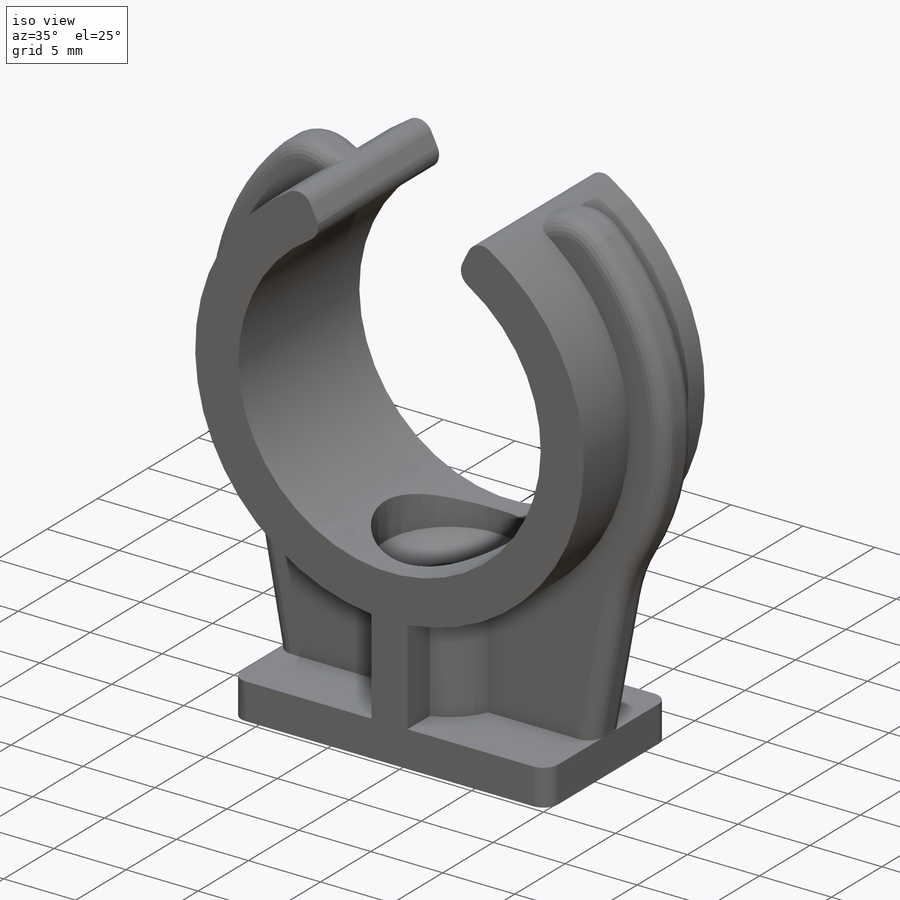
[diagram: iso view]
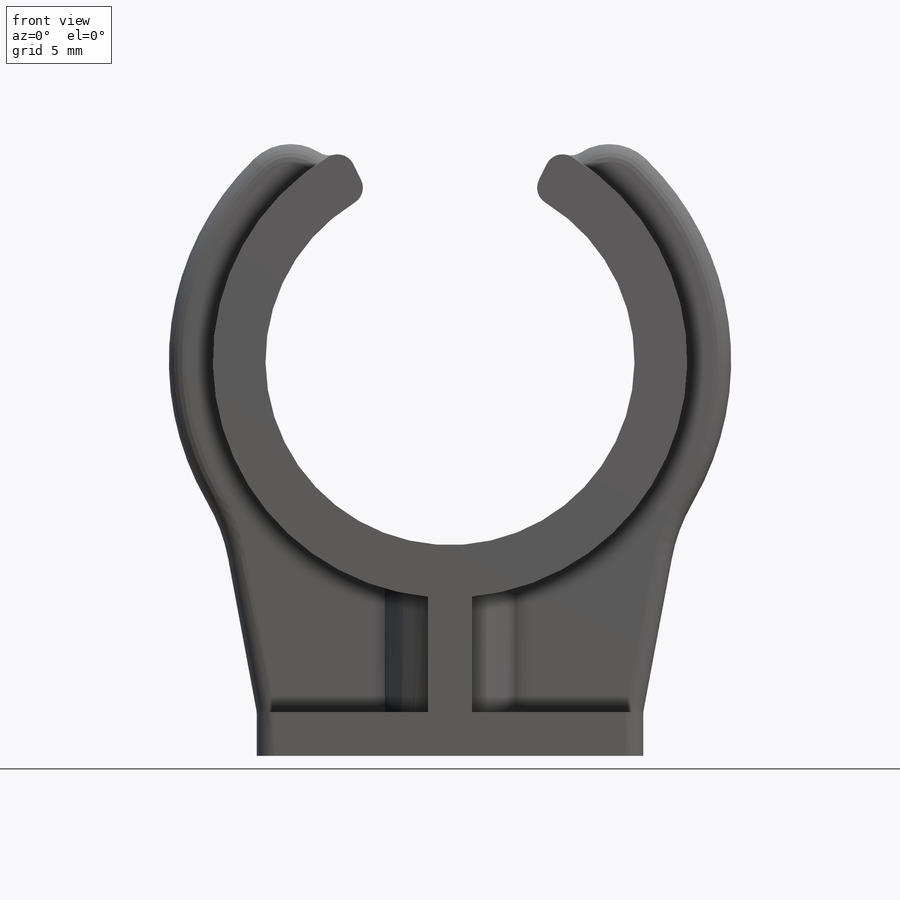
[diagram: front view]
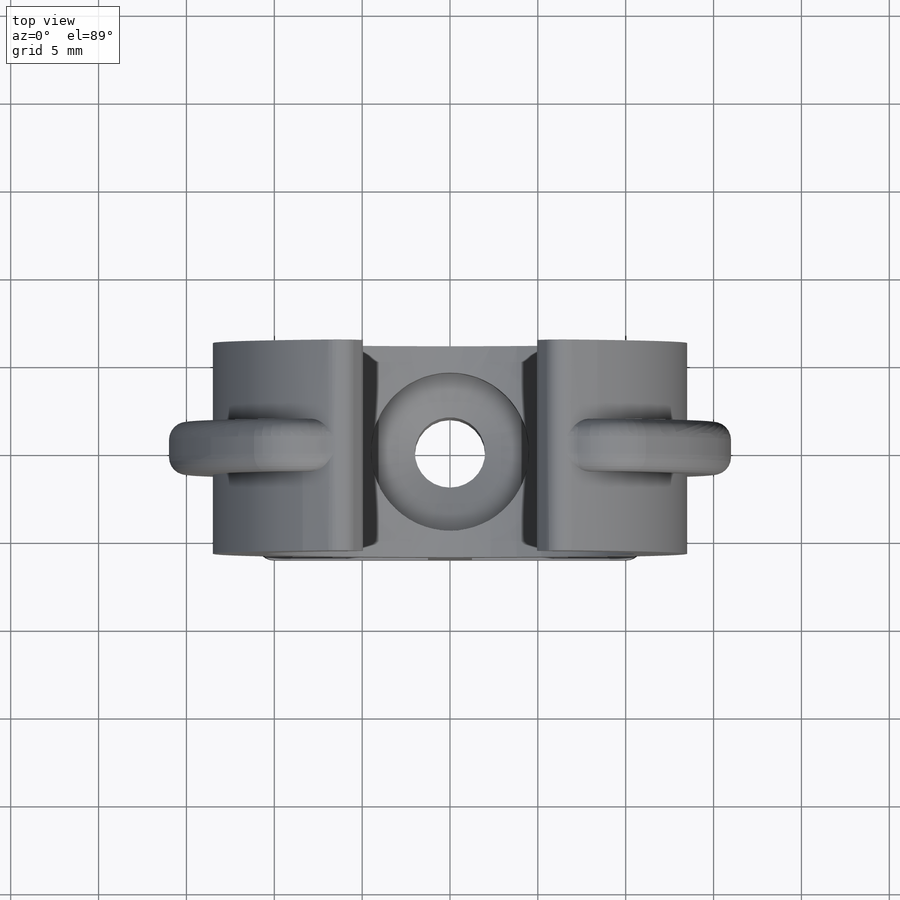
[diagram: top view]
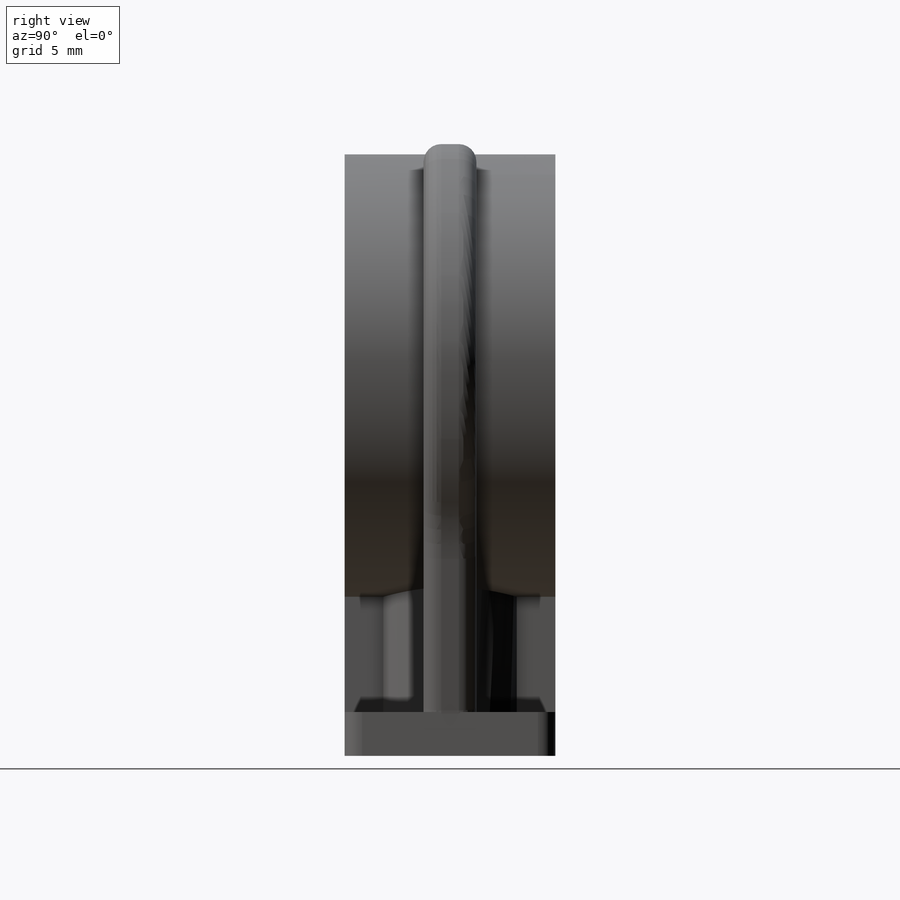
[diagram: right view]
SOLIDWORKS PART (.sldprt)
format: sldprt  version: not decoded by parser v0  size: 418,304 bytes
history: native  units: mm
features: sketch x6, fillet x4, plane x3, extrude x3, cut_extrude x2, material x1, cut_revolve x1 (+12 scaffold rows collapsed)
feature tree (32):
  scaffold x12  (default folders/planes/origin — collapsed)
  material  "Matériau <non spécifié>"
  plane  "Plan de face"
  plane  "Plan de dessus"
  plane  "Plan de droite"
  sketch  "Esquisse1"  dims[c1.D1=~15.293356mm c1.D2=27.0mm c1.D7=1.0mm c1.D8=1.0mm c2.D1=2.5mm c2.D2=20.0mm c2.D3=22.0mm c2.D4=11.0mm c2.D5=2.5mm c2.D6=1.25mm c2.D7=12.0mm c2.D8=6.0mm]
  extrude  "Boss.-Extru.1"  Depth=6mm
  sketch  "Esquisse2"  dims[D1=3.0mm D2=10.0mm]
  extrude  "Boss.-Extru.2"  Depth=1.5mm
  sketch  "Esquisse3"  dims[D1=~3.057818mm]
  extrude  "Boss.-Extru.4"  [1 undecoded]
  sketch  "Esquisse4"  dims[D1=~2.029096mm]
  cut_extrude  "Enlèv. mat.-Extru.1"  [1 undecoded]
  sketch  "Esquisse5"  dims[D1=~3.721421mm]
  cut_extrude  "Enlèv. mat.-Extru.2"  Depth=12mm
  fillet  "Congé5"  Radius=1mm
  fillet  "Congé6"  Radius=1mm
  fillet  "Congé7"  Radius=1mm
  fillet  "Congé8"  Radius=1mm
  sketch  "Esquisse6"
  cut_revolve  "Enlèvement de matière-Révolution1"  Angle=360deg
decode coverage: 13 of 16 modeling features carry decoded parameters
note: ~ marks probable driven/reference dimensions
note: 2 parameter values undecoded
note: suppression state not decoded; provenance and decode notes live in map.json
